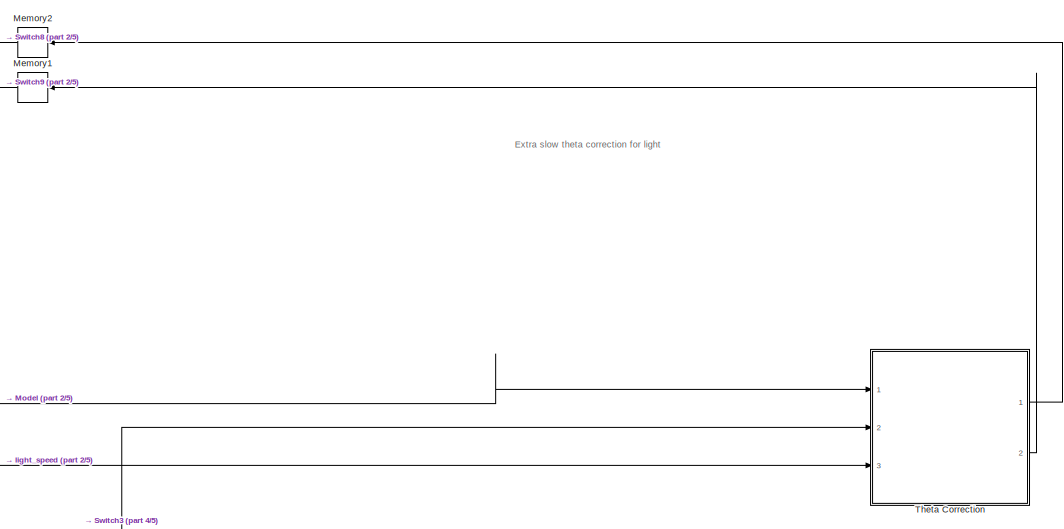
[diagram: root canvas - part 1/5, top right region]
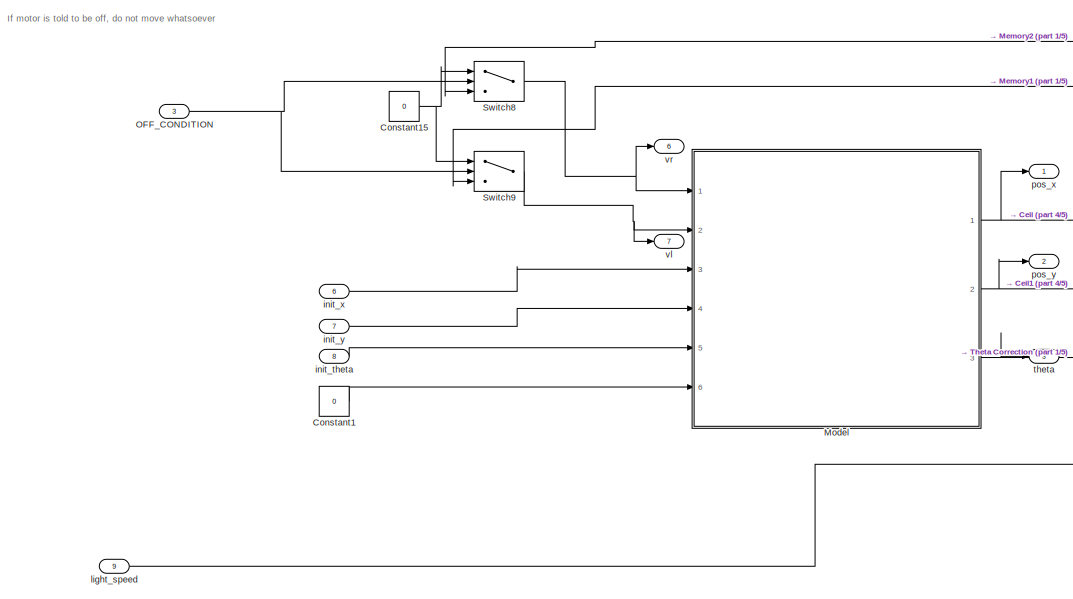
[diagram: root canvas - part 2/5, top left region]
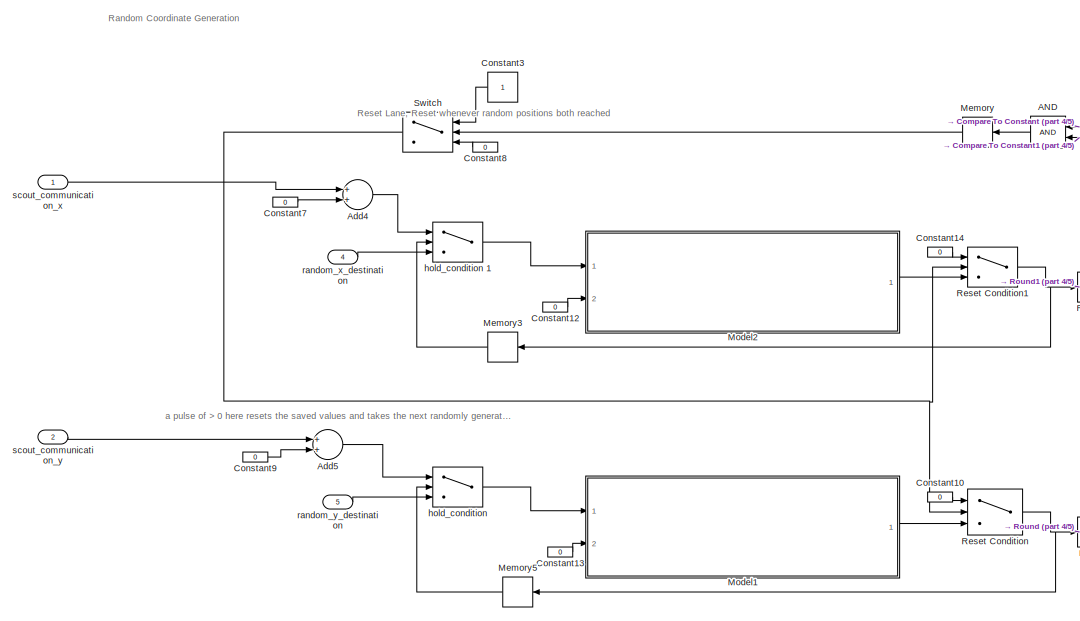
[diagram: root canvas - part 3/5, bottom left region]
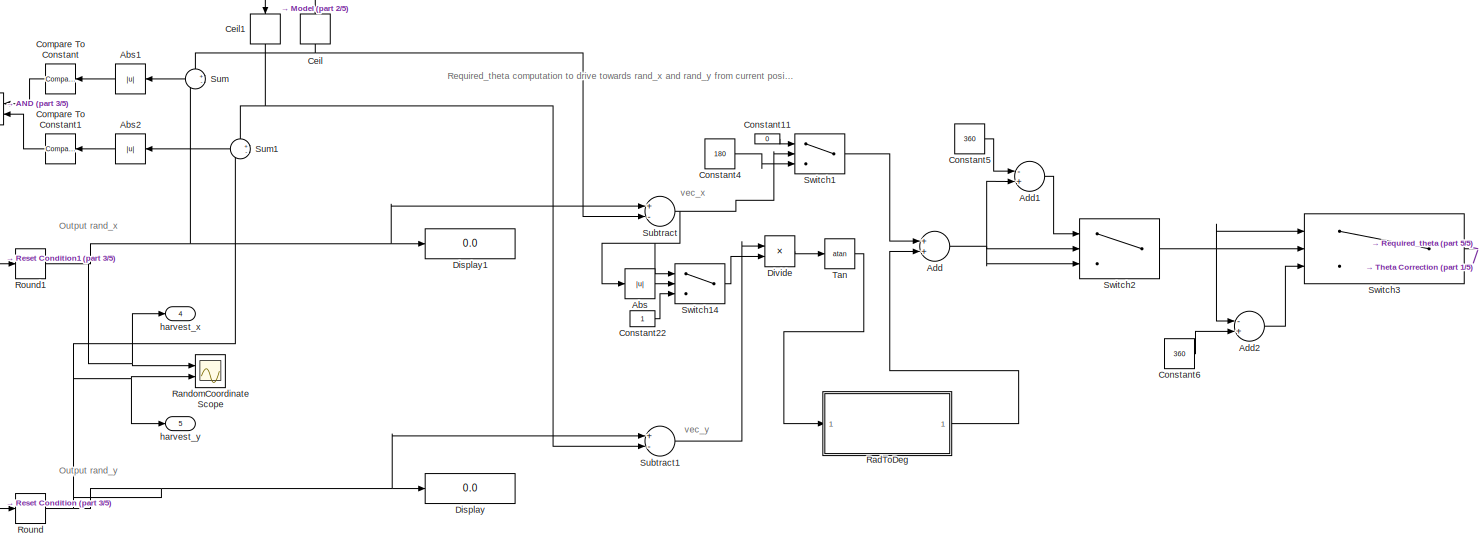
[diagram: root canvas - part 4/5, bottom center region]
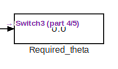
[diagram: root canvas - part 5/5, bottom right region]
MODEL slx_9ab2fbfecc1c
KIND model
CONFIG AbsTol = auto
CONFIG EnableMultiTasking = off
CONFIG FixedStep = 0.01
CONFIG MaxStep = auto
CONFIG MinStep = auto
CONFIG RelTol = 1e-5
CONFIG SampleTimeConstraint = Unconstrained
CONFIG Solver = VariableStepAuto
CONFIG SolverName = VariableStepAuto
CONFIG StartTime = 0.0
CONFIG StopTime = 500
BLOCK [Logic] AND
  AllPortsSameDT = off
  IconShape = distinctive
  OutDataTypeStr = boolean
  Ports = [2, 1]
BLOCK [Abs] Abs
  SaturateOnIntegerOverflow = off
  ZeroCross = off
BLOCK [Abs] Abs1
  SaturateOnIntegerOverflow = off
BLOCK [Abs] Abs2
  SaturateOnIntegerOverflow = off
BLOCK [Sum] Add
  InputSameDT = off
  OutDataTypeStr = Inherit: Inherit via internal rule
  Ports = [2, 1]
  SaturateOnIntegerOverflow = off
BLOCK [Sum] Add1
  InputSameDT = off
  Inputs = -+
  OutDataTypeStr = Inherit: Inherit via internal rule
  Ports = [2, 1]
  SaturateOnIntegerOverflow = off
BLOCK [Sum] Add2
  InputSameDT = off
  Inputs = -+
  OutDataTypeStr = Inherit: Inherit via internal rule
  Ports = [2, 1]
  SaturateOnIntegerOverflow = off
BLOCK [Sum] Add4
  InputSameDT = off
  OutDataTypeStr = Inherit: Inherit via internal rule
  Ports = [2, 1]
  SaturateOnIntegerOverflow = off
BLOCK [Sum] Add5
  InputSameDT = off
  OutDataTypeStr = Inherit: Inherit via internal rule
  Ports = [2, 1]
  SaturateOnIntegerOverflow = off
BLOCK [Rounding] Ceil
  Operator = ceil
BLOCK [Rounding] Ceil1
  Operator = ceil
BLOCK [Reference] Compare To Constant  REF=simulink/Logic and Bit
Operations/Compare
To Constant
  Ports = [1, 1]
  SourceBlock = simulink/Logic and Bit\nOperations/Compare\nTo Constant
  SourceProductBaseCode = SL
  SourceProductName = Simulink
  SourceType = Compare To Constant
BLOCK [Reference] Compare To Constant1  REF=simulink/Logic and Bit
Operations/Compare
To Constant
  Ports = [1, 1]
  SourceBlock = simulink/Logic and Bit\nOperations/Compare\nTo Constant
  SourceProductBaseCode = SL
  SourceProductName = Simulink
  SourceType = Compare To Constant
BLOCK [Constant] Constant1
  Value = 0
BLOCK [Constant] Constant10
  Value = 0
BLOCK [Constant] Constant11
  Value = 0
BLOCK [Constant] Constant12
  Value = 0
BLOCK [Constant] Constant13
  Value = 0
BLOCK [Constant] Constant14
  Value = 0
BLOCK [Constant] Constant15
  Value = 0
BLOCK [Constant] Constant22
BLOCK [Constant] Constant3
BLOCK [Constant] Constant4
  Value = 180
BLOCK [Constant] Constant5
  Value = 360
BLOCK [Constant] Constant6
  Value = 360
BLOCK [Constant] Constant7
  Value = 0
BLOCK [Constant] Constant8
  Value = 0
BLOCK [Constant] Constant9
  Value = 0
BLOCK [Display] Display
  Decimation = 1
  Ports = [1]
BLOCK [Display] Display1
  Decimation = 1
  Ports = [1]
BLOCK [Product] Divide
  InputSameDT = off
  Inputs = */
  OutDataTypeStr = Inherit: Inherit via internal rule
  Ports = [2, 1]
  RndMeth = Floor
  SaturateOnIntegerOverflow = off
BLOCK [Memory] Memory
BLOCK [Memory] Memory1
BLOCK [Memory] Memory2
BLOCK [Memory] Memory3
  InheritSampleTime = on
BLOCK [Memory] Memory5
  InheritSampleTime = on
BLOCK [ModelReference] Model
  ModelNameDialog = differential_drive.slx
  ModelReferenceVersion = 1.313
  Ports = [6, 3]
BLOCK [ModelReference] Model1
  ModelNameDialog = enable_hold.slx
  ModelReferenceVersion = 1.286
  Ports = [2, 1]
BLOCK [ModelReference] Model2
  ModelNameDialog = enable_hold.slx
  ModelReferenceVersion = 1.286
  Ports = [2, 1]
BLOCK [Inport] OFF_CONDITION 
  IconDisplay = Port number
  Port = 3
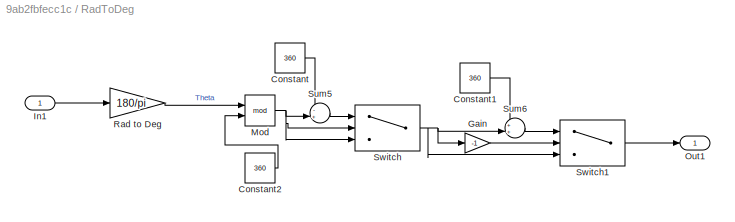
BLOCK [SubSystem] RadToDeg
  Ports = [1, 1]
  RequestExecContextInheritance = off
BLOCK [Constant] RadToDeg/Constant
  Value = 360
BLOCK [Constant] RadToDeg/Constant1
  Value = 360
BLOCK [Constant] RadToDeg/Constant2
  Value = 360
BLOCK [Gain] RadToDeg/Gain
  Gain = -1
  OutDataTypeStr = Inherit: Inherit via internal rule
  ParamDataTypeStr = Inherit: Inherit via internal rule
  SaturateOnIntegerOverflow = off
BLOCK [Inport] RadToDeg/In1
  IconDisplay = Port number
BLOCK [Math] RadToDeg/Mod
  Operator = mod
  Ports = [2, 1]
BLOCK [Outport] RadToDeg/Out1
  IconDisplay = Port number
BLOCK [Gain] RadToDeg/Rad to Deg
  Gain = 180/pi
  OutDataTypeStr = Inherit: Inherit via internal rule
  ParamDataTypeStr = Inherit: Inherit via internal rule
  SaturateOnIntegerOverflow = off
BLOCK [Sum] RadToDeg/Sum5
  IconShape = round
  InputSameDT = off
  Inputs = -+|
  OutDataTypeStr = Inherit: Inherit via internal rule
  Ports = [2, 1]
  SaturateOnIntegerOverflow = off
BLOCK [Sum] RadToDeg/Sum6
  IconShape = round
  InputSameDT = off
  Inputs = ++|
  OutDataTypeStr = Inherit: Inherit via internal rule
  Ports = [2, 1]
  SaturateOnIntegerOverflow = off
BLOCK [Switch] RadToDeg/Switch
  Criteria = u2 > Threshold
  InputSameDT = off
  SaturateOnIntegerOverflow = off
  Threshold = 180
BLOCK [Switch] RadToDeg/Switch1
  Criteria = u2 > Threshold
  InputSameDT = off
  SaturateOnIntegerOverflow = off
  Threshold = 180
BLOCK [Scope] RandomCoordinate Scope 
  Floating = off
  NumInputPorts = 2
  Ports = [2]
  ScopeSpecificationString = Simulink.scopes.TimeScopeBlockCfg('CurrentConfiguration', extmgr.ConfigurationSet(extmgr.Configuration('Core','General UI',true),extmgr.Configuration('Core','Source UI',true),extmgr.Configuration('Sources','WiredSimulink',true,'DataLoggingVariableName','ScopeData1'),extmgr.Configuration('Visuals','Time Domain',true,'SerializedDisplays',{struct('MinYLimReal','-24.5','MaxYLimReal','220.5','YLabelRea...<+1708ch>
BLOCK [Display] Required_theta
  Decimation = 1
  Ports = [1]
BLOCK [Switch] Reset Condition
  Criteria = u2 > Threshold
  InputSameDT = off
  SaturateOnIntegerOverflow = off
BLOCK [Switch] Reset Condition1
  Criteria = u2 > Threshold
  InputSameDT = off
  SaturateOnIntegerOverflow = off
BLOCK [Rounding] Round
  Operator = ceil
BLOCK [Rounding] Round1
  Operator = ceil
BLOCK [Sum] Subtract
  InputSameDT = off
  Inputs = +-
  OutDataTypeStr = Inherit: Inherit via internal rule
  Ports = [2, 1]
  SaturateOnIntegerOverflow = off
BLOCK [Sum] Subtract1
  InputSameDT = off
  Inputs = +-
  OutDataTypeStr = Inherit: Inherit via internal rule
  Ports = [2, 1]
  SaturateOnIntegerOverflow = off
BLOCK [Sum] Sum
  IconShape = round
  InputSameDT = off
  Inputs = +-
  OutDataTypeStr = Inherit: Inherit via internal rule
  Ports = [2, 1]
  SaturateOnIntegerOverflow = off
BLOCK [Sum] Sum1
  IconShape = round
  InputSameDT = off
  Inputs = +-
  OutDataTypeStr = Inherit: Inherit via internal rule
  Ports = [2, 1]
  SaturateOnIntegerOverflow = off
BLOCK [Switch] Switch
  Criteria = u2 > Threshold
  InputSameDT = off
  SaturateOnIntegerOverflow = off
BLOCK [Switch] Switch1
  InputSameDT = off
  SaturateOnIntegerOverflow = off
BLOCK [Switch] Switch14
  InputSameDT = off
  SaturateOnIntegerOverflow = off
  Threshold = 1
  ZeroCross = off
BLOCK [Switch] Switch2
  Criteria = u2 > Threshold
  InputSameDT = off
  SaturateOnIntegerOverflow = off
  Threshold = 180
BLOCK [Switch] Switch3
  InputSameDT = off
  SaturateOnIntegerOverflow = off
  Threshold = -180
BLOCK [Switch] Switch8
  Criteria = u2 > Threshold
  InputSameDT = off
  SaturateOnIntegerOverflow = off
BLOCK [Switch] Switch9
  Criteria = u2 > Threshold
  InputSameDT = off
  SaturateOnIntegerOverflow = off
BLOCK [Trigonometry] Tan
  Operator = atan
  OutputSignalType = real
  Ports = [1, 1]
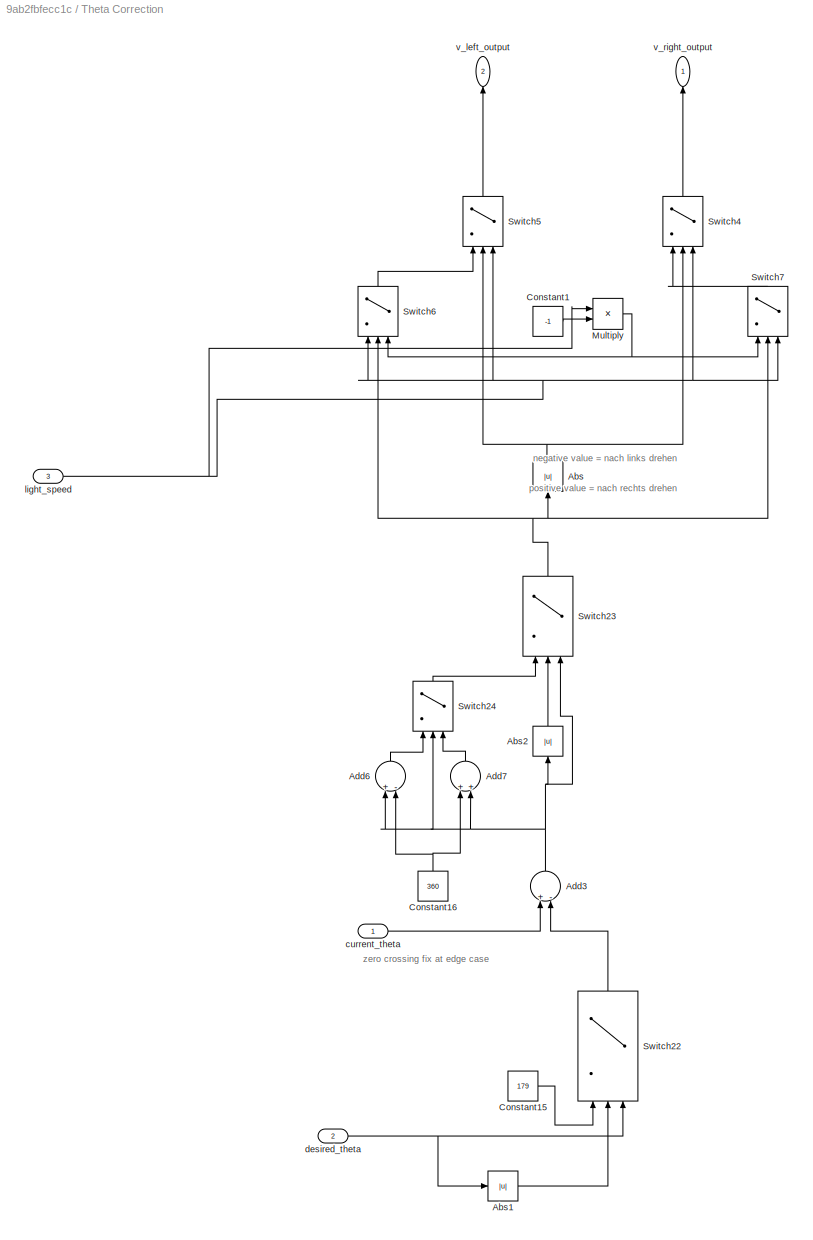
BLOCK [SubSystem] Theta Correction 
  Ports = [3, 2]
  RequestExecContextInheritance = off
BLOCK [Abs] Theta Correction /Abs
  SaturateOnIntegerOverflow = off
  ZeroCross = off
BLOCK [Abs] Theta Correction /Abs1
  SaturateOnIntegerOverflow = off
  ZeroCross = off
BLOCK [Abs] Theta Correction /Abs2
  SaturateOnIntegerOverflow = off
  ZeroCross = off
BLOCK [Sum] Theta Correction /Add3
  InputSameDT = off
  Inputs = +-
  OutDataTypeStr = Inherit: Inherit via internal rule
  Ports = [2, 1]
  SaturateOnIntegerOverflow = off
BLOCK [Sum] Theta Correction /Add6
  InputSameDT = off
  Inputs = +-
  OutDataTypeStr = Inherit: Inherit via internal rule
  Ports = [2, 1]
  SaturateOnIntegerOverflow = off
BLOCK [Sum] Theta Correction /Add7
  InputSameDT = off
  OutDataTypeStr = Inherit: Inherit via internal rule
  Ports = [2, 1]
  SaturateOnIntegerOverflow = off
BLOCK [Constant] Theta Correction /Constant1
  Value = -1
BLOCK [Constant] Theta Correction /Constant15
  Value = 179
BLOCK [Constant] Theta Correction /Constant16
  Value = 360
BLOCK [Product] Theta Correction /Multiply
  InputSameDT = off
  OutDataTypeStr = Inherit: Inherit via internal rule
  Ports = [2, 1]
  RndMeth = Floor
  SaturateOnIntegerOverflow = off
BLOCK [Switch] Theta Correction /Switch22
  InputSameDT = off
  SaturateOnIntegerOverflow = off
  Threshold = 177
  ZeroCross = off
BLOCK [Switch] Theta Correction /Switch23
  Criteria = u2 > Threshold
  InputSameDT = off
  SaturateOnIntegerOverflow = off
  Threshold = 180
  ZeroCross = off
BLOCK [Switch] Theta Correction /Switch24
  Criteria = u2 > Threshold
  InputSameDT = off
  SaturateOnIntegerOverflow = off
  ZeroCross = off
BLOCK [Switch] Theta Correction /Switch4
  InputSameDT = off
  SaturateOnIntegerOverflow = off
  Threshold = 3
BLOCK [Switch] Theta Correction /Switch5
  InputSameDT = off
  SaturateOnIntegerOverflow = off
  Threshold = 3
BLOCK [Switch] Theta Correction /Switch6
  Criteria = u2 > Threshold
  InputSameDT = off
  SaturateOnIntegerOverflow = off
BLOCK [Switch] Theta Correction /Switch7
  Criteria = u2 > Threshold
  InputSameDT = off
  SaturateOnIntegerOverflow = off
BLOCK [Inport] Theta Correction /current_theta
  IconDisplay = Port number
BLOCK [Inport] Theta Correction /desired_theta
  IconDisplay = Port number
  Port = 2
BLOCK [Inport] Theta Correction /light_speed
  IconDisplay = Port number
  Port = 3
BLOCK [Outport] Theta Correction /v_left_output
  IconDisplay = Port number
  Port = 2
BLOCK [Outport] Theta Correction /v_right_output
  IconDisplay = Port number
BLOCK [Outport] harvest_x
  IconDisplay = Port number
  Port = 4
BLOCK [Outport] harvest_y
  IconDisplay = Port number
  Port = 5
BLOCK [Switch] hold_condition 
  Criteria = u2 > Threshold
  InputSameDT = off
  SaturateOnIntegerOverflow = off
BLOCK [Switch] hold_condition 1
  Criteria = u2 > Threshold
  InputSameDT = off
  SaturateOnIntegerOverflow = off
BLOCK [Inport] init_theta 
  IconDisplay = Port number
  Port = 8
BLOCK [Inport] init_x 
  IconDisplay = Port number
  Port = 6
BLOCK [Inport] init_y
  IconDisplay = Port number
  Port = 7
BLOCK [Inport] light_speed
  IconDisplay = Port number
  Port = 9
BLOCK [Outport] pos_x
  IconDisplay = Port number
BLOCK [Outport] pos_y
  IconDisplay = Port number
  Port = 2
BLOCK [Inport] random_x_destination
  IconDisplay = Port number
  Port = 4
BLOCK [Inport] random_y_destination
  IconDisplay = Port number
  Port = 5
BLOCK [Inport] scout_communication_x 
  IconDisplay = Port number
BLOCK [Inport] scout_communication_y
  IconDisplay = Port number
  Port = 2
BLOCK [Outport] theta
  IconDisplay = Port number
  Port = 3
BLOCK [Outport] vl
  IconDisplay = Port number
  Port = 7
BLOCK [Outport] vr
  IconDisplay = Port number
  Port = 6
ANNOTATION (root): Extra slow theta correction for light
ANNOTATION (root): If motor is told to be off, do not move whatsoever
ANNOTATION (root): Output rand_x
ANNOTATION (root): Output rand_y
ANNOTATION (root): Random Coordinate Generation
ANNOTATION (root): Required_theta computation to drive towards rand_x and rand_y from current position
ANNOTATION (root): Reset Lane, Reset whenever random positions both reached
ANNOTATION (root): a pulse of > 0 here resets the saved values and takes the next randomly generated value
ANNOTATION (root): vec_x
ANNOTATION (root): vec_y
ANNOTATION Theta Correction : negative value = nach links drehen
ANNOTATION Theta Correction : positive value = nach rechts drehen
ANNOTATION Theta Correction : zero crossing fix at edge case
LINE AND:1 -> Memory:1
LINE Abs1:1 -> Compare To Constant:1
LINE Abs2:1 -> Compare To Constant1:1
LINE Abs:1 -> Switch14:2
LINE Add1:1 -> Switch2:1
LINE Add2:1 -> Switch3:3
LINE Add4:1 -> hold_condition 1:1
LINE Add5:1 -> hold_condition :1
NET Add:1 -> Add1:2, Switch2:2, Switch2:3
NET Ceil1:1 -> Subtract1:2, Sum1:1
NET Ceil:1 -> Subtract:2, Sum:1
LINE Compare To Constant1:1 -> AND:2
LINE Compare To Constant:1 -> AND:1
LINE Constant10:1 -> Reset Condition:1
LINE Constant11:1 -> Switch1:1
LINE Constant12:1 -> Model2:2
LINE Constant13:1 -> Model1:2
LINE Constant14:1 -> Reset Condition1:1
NET Constant15:1 -> Switch8:1, Switch9:1
LINE Constant1:1 -> Model:6
LINE Constant22:1 -> Switch14:3
LINE Constant3:1 -> Switch:1
LINE Constant4:1 -> Switch1:3
LINE Constant5:1 -> Add1:1
LINE Constant6:1 -> Add2:2
LINE Constant7:1 -> Add4:2
LINE Constant8:1 -> Switch:3
LINE Constant9:1 -> Add5:2
LINE Divide:1 -> Tan:1
LINE Memory1:1 -> Switch9:3
LINE Memory2:1 -> Switch8:3
LINE Memory3:1 -> hold_condition 1:2
LINE Memory5:1 -> hold_condition :2
LINE Memory:1 -> Switch:2
LINE Model1:1 -> Reset Condition:3
LINE Model2:1 -> Reset Condition1:3
NET Model:1 -> Ceil:1, pos_x:1
NET Model:2 -> Ceil1:1, pos_y:1
NET Model:3 -> Theta Correction :1, theta:1
NET OFF_CONDITION :1 -> Switch8:2, Switch9:2
LINE RadToDeg/Constant1:1 -> RadToDeg/Sum6:1
LINE RadToDeg/Constant2:1 -> RadToDeg/Mod:2
LINE RadToDeg/Constant:1 -> RadToDeg/Sum5:1
LINE RadToDeg/Gain:1 -> RadToDeg/Switch1:2
LINE RadToDeg/In1:1 -> RadToDeg/Rad to Deg:1
NET RadToDeg/Mod:1 -> RadToDeg/Sum5:2, RadToDeg/Switch:2, RadToDeg/Switch:3
LINE RadToDeg/Rad to Deg:1 -> RadToDeg/Mod:1
LINE RadToDeg/Sum5:1 -> RadToDeg/Switch:1
LINE RadToDeg/Sum6:1 -> RadToDeg/Switch1:1
LINE RadToDeg/Switch1:1 -> RadToDeg/Out1:1
NET RadToDeg/Switch:1 -> RadToDeg/Gain:1, RadToDeg/Sum6:2, RadToDeg/Switch1:3
LINE RadToDeg:1 -> Add:2
NET Reset Condition1:1 -> Memory3:1, Round1:1
NET Reset Condition:1 -> Memory5:1, Round:1
NET Round1:1 -> Display1:1, RandomCoordinate Scope :1, Subtract:1, Sum:2, harvest_x:1
NET Round:1 -> Display:1, RandomCoordinate Scope :2, Subtract1:1, Sum1:2, harvest_y:1
LINE Subtract1:1 -> Divide:1
NET Subtract:1 -> Abs:1, Switch14:1, Switch1:2
LINE Sum1:1 -> Abs2:1
LINE Sum:1 -> Abs1:1
LINE Switch14:1 -> Divide:2
LINE Switch1:1 -> Add:1
NET Switch2:1 -> Add2:1, Switch3:1, Switch3:2
NET Switch3:1 -> Required_theta:1, Theta Correction :2
NET Switch8:1 -> Model:1, vr:1
NET Switch9:1 -> Model:2, vl:1
NET Switch:1 -> Reset Condition1:2, Reset Condition:2
LINE Tan:1 -> RadToDeg:1
LINE Theta Correction /Abs1:1 -> Theta Correction /Switch22:2
LINE Theta Correction /Abs2:1 -> Theta Correction /Switch23:2
NET Theta Correction /Abs:1 -> Theta Correction /Switch4:2, Theta Correction /Switch5:2
NET Theta Correction /Add3:1 -> Theta Correction /Abs2:1, Theta Correction /Add6:1, Theta Correction /Add7:2, Theta Correction /Switch23:3, Theta Correction /Switch24:2
LINE Theta Correction /Add6:1 -> Theta Correction /Switch24:1
LINE Theta Correction /Add7:1 -> Theta Correction /Switch24:3
LINE Theta Correction /Constant15:1 -> Theta Correction /Switch22:1
NET Theta Correction /Constant16:1 -> Theta Correction /Add6:2, Theta Correction /Add7:1
LINE Theta Correction /Constant1:1 -> Theta Correction /Multiply:2
NET Theta Correction /Multiply:1 -> Theta Correction /Switch6:3, Theta Correction /Switch7:1
LINE Theta Correction /Switch22:1 -> Theta Correction /Add3:2
NET Theta Correction /Switch23:1 -> Theta Correction /Abs:1, Theta Correction /Switch6:2, Theta Correction /Switch7:2
LINE Theta Correction /Switch24:1 -> Theta Correction /Switch23:1
LINE Theta Correction /Switch4:1 -> Theta Correction /v_right_output:1
LINE Theta Correction /Switch5:1 -> Theta Correction /v_left_output:1
LINE Theta Correction /Switch6:1 -> Theta Correction /Switch5:1
LINE Theta Correction /Switch7:1 -> Theta Correction /Switch4:1
LINE Theta Correction /current_theta:1 -> Theta Correction /Add3:1
NET Theta Correction /desired_theta:1 -> Theta Correction /Abs1:1, Theta Correction /Switch22:3
NET Theta Correction /light_speed:1 -> Theta Correction /Multiply:1, Theta Correction /Switch4:3, Theta Correction /Switch5:3, Theta Correction /Switch6:1, Theta Correction /Switch7:3
LINE Theta Correction :1 -> Memory2:1
LINE Theta Correction :2 -> Memory1:1
LINE hold_condition 1:1 -> Model2:1
LINE hold_condition :1 -> Model1:1
LINE init_theta :1 -> Model:5
LINE init_x :1 -> Model:3
LINE init_y:1 -> Model:4
LINE light_speed:1 -> Theta Correction :3
LINE random_x_destination:1 -> hold_condition 1:3
LINE random_y_destination:1 -> hold_condition :3
LINE scout_communication_x :1 -> Add4:1
LINE scout_communication_y:1 -> Add5:1
note: NET lines group one-source signal fan-out (src -> all destinations, sorted); 1:1 wires keep LINE
